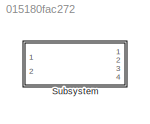
MODEL slx_015180fac272
KIND model
CONFIG AbsTol = auto
CONFIG FixedStep = auto
CONFIG MaxStep = auto
CONFIG MinStep = auto
CONFIG RelTol = 1e-3
CONFIG SampleTimeConstraint = Unconstrained
CONFIG Solver = VariableStepAuto
CONFIG SolverMode = Auto
CONFIG SolverName = VariableStepAuto
CONFIG StartTime = 0.0
CONFIG StopTime = 10.0
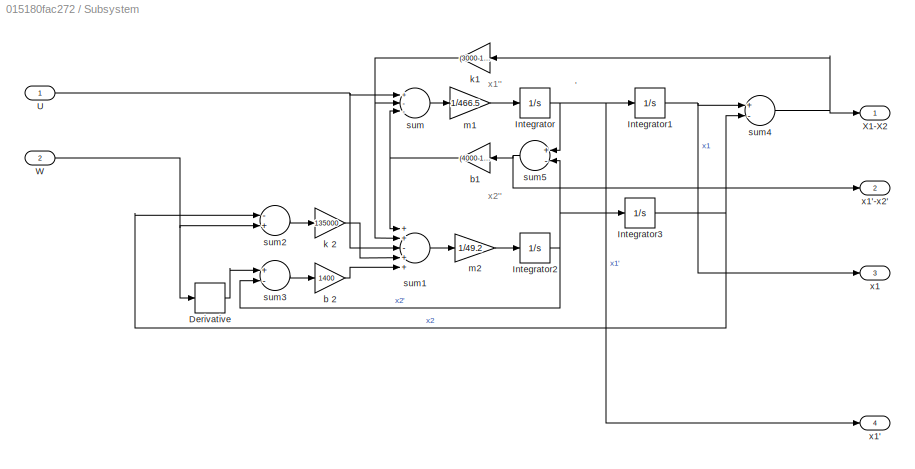
BLOCK [SubSystem] Subsystem
  Ports = [2, 4]
  RequestExecContextInheritance = off
  Variant = off
BLOCK [Gain] Subsystem/ b1
  Gain = (4000-1000)*rand + 1000
BLOCK [Gain] Subsystem/ k1
  Gain = (3000-1000)*rand + 1000
BLOCK [Derivative] Subsystem/Derivative
BLOCK [Integrator] Subsystem/Integrator
  Ports = [1, 1]
BLOCK [Integrator] Subsystem/Integrator1
  Ports = [1, 1]
BLOCK [Integrator] Subsystem/Integrator2
  Ports = [1, 1]
BLOCK [Integrator] Subsystem/Integrator3
  Ports = [1, 1]
BLOCK [Inport] Subsystem/U
  IconDisplay = Port number
BLOCK [Inport] Subsystem/W
  IconDisplay = Port number
  Port = 2
BLOCK [Outport] Subsystem/X1-X2
  IconDisplay = Port number
BLOCK [Gain] Subsystem/b 2
  Gain = 1400
BLOCK [Gain] Subsystem/k 2
  Gain = 135000
BLOCK [Gain] Subsystem/m1
  Gain = 1/466.5
BLOCK [Gain] Subsystem/m2
  Gain = 1/49.2
BLOCK [Sum] Subsystem/sum
  Inputs = +--
  Ports = [3, 1]
BLOCK [Sum] Subsystem/sum1
  Inputs = ++-++
  Ports = [5, 1]
BLOCK [Sum] Subsystem/sum2
  Inputs = -+
  Ports = [2, 1]
BLOCK [Sum] Subsystem/sum3
  Inputs = +-
  Ports = [2, 1]
BLOCK [Sum] Subsystem/sum4
  Inputs = +-
  Ports = [2, 1]
BLOCK [Sum] Subsystem/sum5
  Inputs = +-
  Ports = [2, 1]
BLOCK [Outport] Subsystem/x1
  IconDisplay = Port number
  Port = 3
BLOCK [Outport] Subsystem/x1'
  IconDisplay = Port number
  Port = 4
BLOCK [Outport] Subsystem/x1'-x2'
  IconDisplay = Port number
  Port = 2
ANNOTATION Subsystem: '
ANNOTATION Subsystem: x1''
ANNOTATION Subsystem: x2''
NET Subsystem/ b1:1 -> Subsystem/sum1:1, Subsystem/sum:3
NET Subsystem/ k1:1 -> Subsystem/sum1:2, Subsystem/sum:2
LINE Subsystem/Derivative:1 -> Subsystem/sum3:1
NET Subsystem/Integrator1:1 -> Subsystem/sum4:1, Subsystem/x1:1
NET Subsystem/Integrator2:1 -> Subsystem/Integrator3:1, Subsystem/sum3:2, Subsystem/sum5:2
NET Subsystem/Integrator3:1 -> Subsystem/sum2:1, Subsystem/sum4:2
NET Subsystem/Integrator:1 -> Subsystem/Integrator1:1, Subsystem/sum5:1, Subsystem/x1':1
NET Subsystem/U:1 -> Subsystem/sum1:3, Subsystem/sum:1
NET Subsystem/W:1 -> Subsystem/Derivative:1, Subsystem/sum2:2
LINE Subsystem/b 2:1 -> Subsystem/sum1:5
LINE Subsystem/k 2:1 -> Subsystem/sum1:4
LINE Subsystem/m1:1 -> Subsystem/Integrator:1
LINE Subsystem/m2:1 -> Subsystem/Integrator2:1
LINE Subsystem/sum1:1 -> Subsystem/m2:1
LINE Subsystem/sum2:1 -> Subsystem/k 2:1
LINE Subsystem/sum3:1 -> Subsystem/b 2:1
NET Subsystem/sum4:1 -> Subsystem/ k1:1, Subsystem/X1-X2:1
NET Subsystem/sum5:1 -> Subsystem/ b1:1, Subsystem/x1'-x2':1
LINE Subsystem/sum:1 -> Subsystem/m1:1
note: NET lines group one-source signal fan-out (src -> all destinations, sorted); 1:1 wires keep LINE
